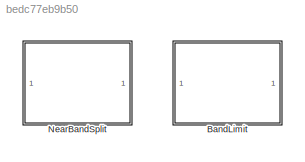
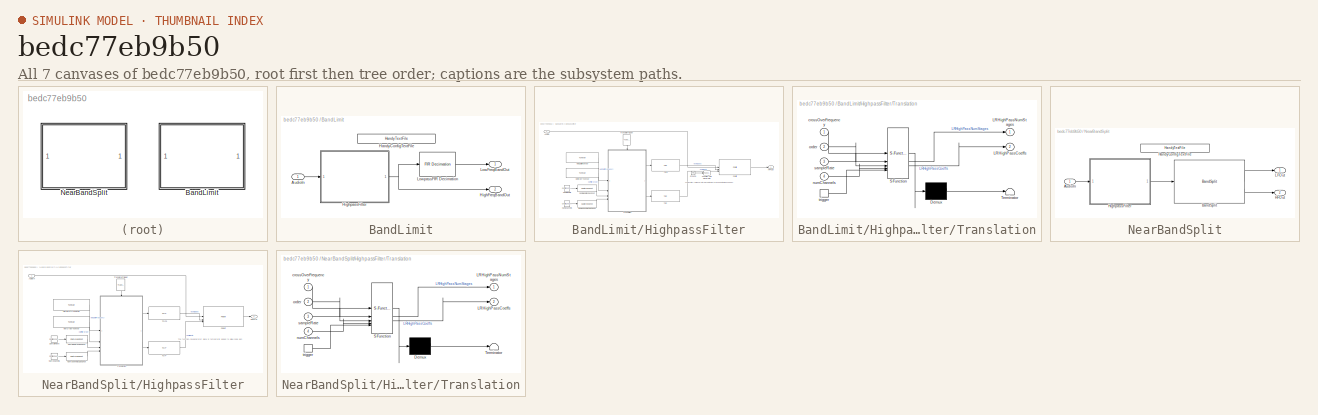
[diagram: thumbnail index - all 7 canvases of the model, root first then tree order]
MODEL slx_bedc77eb9b50
KIND library
CONFIG AbsTol = auto
CONFIG EnableMultiTasking = off
CONFIG FixedStep = auto
CONFIG MaxStep = auto
CONFIG MinStep = auto
CONFIG RelTol = 1e-3
CONFIG SampleTimeConstraint = Unconstrained
CONFIG SolverName = VariableStepAuto
CONFIG StartTime = 0.0
CONFIG StopTime = 10.0
BLOCK [SubSystem] BandLimit
  LibrarySourceBlock = BandSplitLib/BandSplit
BLOCK [Inport] BandLimit/AudioIn
BLOCK [Reference] BandLimit/HandyConfigTextFile  REF=HandyTextFile/HandyTextFile
  SourceBlock = HandyTextFile/HandyTextFile
  SourceProductName = Bose Talaria
  SourceType = Talaria Handy Text File
BLOCK [Outport] BandLimit/HighFreqBandOut
  Port = 2
  VectorParamsAs1DForOutWhenUnconnected = off
BLOCK [SubSystem] BandLimit/HighpassFilter
BLOCK [Inport] BandLimit/HighpassFilter/AudioIn
BLOCK [Reference] BandLimit/HighpassFilter/Function-Call Generator  REF=simulink/Ports &
Subsystems/Function-Call
Generator
  SourceBlock = simulink/Ports &\nSubsystems/Function-Call\nGenerator
  SourceType = Function-Call Generator
BLOCK [Ground] BandLimit/HighpassFilter/Ground
BLOCK [Outport] BandLimit/HighpassFilter/HPFOut
BLOCK [Reference] BandLimit/HighpassFilter/HpfCutOffTuneVar  REF=TuneVar/TuneVar
  SourceBlock = TuneVar/TuneVar
  SourceProductName = Bose Talaria
  SourceType = Talaria Tune Variable
BLOCK [Reference] BandLimit/HighpassFilter/HpfOrderTuneVar  REF=TuneVar/TuneVar
  SourceBlock = TuneVar/TuneVar
  SourceProductName = Bose Talaria
  SourceType = Talaria Tune Variable
BLOCK [Constant] BandLimit/HighpassFilter/NumChannels
  Value = Config.ChannelCount
BLOCK [Reference] BandLimit/HighpassFilter/NumChannelsCapConst  REF=CapturedConstLib/CapturedConst
  SourceBlock = CapturedConstLib/CapturedConst
  SourceProductName = Bose Talaria
  SourceType = Talaria Captured Constant
BLOCK [Reference] BandLimit/HighpassFilter/PoolIir  REF=PoolIir/PoolIir
  SourceBlock = PoolIir/PoolIir
  SourceType = Bose Pool IIR
BLOCK [Constant] BandLimit/HighpassFilter/SampleRate
  Value = Config.FsFast
BLOCK [Reference] BandLimit/HighpassFilter/SampleRateCapConst  REF=CapturedConstLib/CapturedConst
  SourceBlock = CapturedConstLib/CapturedConst
  SourceProductName = Bose Talaria
  SourceType = Talaria Captured Constant
BLOCK [Reference] BandLimit/HighpassFilter/TOP  REF=TOP/TOP
  SourceBlock = TOP/TOP
  SourceProductName = Bose Talaria
  SourceType = Talaria Target Overlay Parameter
BLOCK [Reference] BandLimit/HighpassFilter/TOP1  REF=TOP/TOP
  SourceBlock = TOP/TOP
  SourceProductName = Bose Talaria
  SourceType = Talaria Target Overlay Parameter
BLOCK [Reference] BandLimit/HighpassFilter/TranslateTrigger  REF=TuneVar/TranslateTrigger
  NameLocation = left
  SourceBlock = TuneVar/TranslateTrigger
  SourceProductName = Bose Talaria
  SourceType = Talaria Translate Trigger
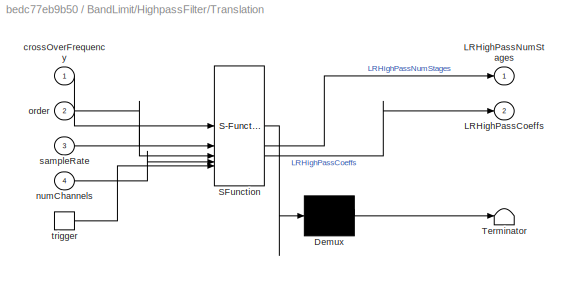
BLOCK [SubSystem] BandLimit/HighpassFilter/Translation
  ErrorFcn = Stateflow.Translate.translate
  PermitHierarchicalResolution = ExplicitOnly
  SFBlockType = MATLAB Function
  TreatAsAtomicUnit = on
BLOCK [Demux] BandLimit/HighpassFilter/Translation/ Demux 
  Outputs = 1
BLOCK [S-Function] BandLimit/HighpassFilter/Translation/ SFunction 
  EnableBusSupport = off
  FunctionName = sf_sfun
  PortCounts = [5 3]
  SFcnIsStateOwnerBlock = off
  SFunctionDeploymentMode = off
  Tag = Stateflow S-Function 2
BLOCK [Terminator] BandLimit/HighpassFilter/Translation/ Terminator 
BLOCK [Outport] BandLimit/HighpassFilter/Translation/LRHighPassCoeffs
  Port = 2
  VectorParamsAs1DForOutWhenUnconnected = off
BLOCK [Outport] BandLimit/HighpassFilter/Translation/LRHighPassNumStages
  VectorParamsAs1DForOutWhenUnconnected = off
BLOCK [Inport] BandLimit/HighpassFilter/Translation/crossOverFrequency
BLOCK [Inport] BandLimit/HighpassFilter/Translation/numChannels
  Port = 4
BLOCK [Inport] BandLimit/HighpassFilter/Translation/order
  Port = 2
BLOCK [Inport] BandLimit/HighpassFilter/Translation/sampleRate
  Port = 3
BLOCK [TriggerPort] BandLimit/HighpassFilter/Translation/trigger
  ShowOutputPort = on
  StatesWhenEnabling = held
  TriggerType = function-call
  VariantControl = Variant
BLOCK [Outport] BandLimit/LowFreqBandOut
  VectorParamsAs1DForOutWhenUnconnected = off
BLOCK [Reference] BandLimit/LowpassFIR Decimation  REF=dspmlti4/FIR
Decimation
  SourceBlock = dspmlti4/FIR\nDecimation
  SourceType = FIR Decimation
  UserDataPersistent = on
BLOCK [SubSystem] NearBandSplit
BLOCK [Inport] NearBandSplit/AudioIn
BLOCK [Reference] NearBandSplit/BandSplit  REF=BandSplitLibDeprecated/BandSplit
  SourceBlock = BandSplitLibDeprecated/BandSplit
  SourceType = NEAR BandSplit
BLOCK [Outport] NearBandSplit/HFOut
  Port = 2
  VectorParamsAs1DForOutWhenUnconnected = off
BLOCK [Reference] NearBandSplit/HandyConfigTextFile  REF=HandyTextFile/HandyTextFile
  SourceBlock = HandyTextFile/HandyTextFile
  SourceProductName = Bose Talaria
  SourceType = Talaria Handy Text File
BLOCK [SubSystem] NearBandSplit/HighpassFilter
BLOCK [Inport] NearBandSplit/HighpassFilter/AudioIn
BLOCK [Outport] NearBandSplit/HighpassFilter/HPFOut
BLOCK [Reference] NearBandSplit/HighpassFilter/HpfCutOffTuneVar  REF=TuneVar/TuneVar
  SourceBlock = TuneVar/TuneVar
  SourceProductName = Bose Talaria
  SourceType = Talaria Tune Variable
BLOCK [Reference] NearBandSplit/HighpassFilter/HpfOrderTuneVar  REF=TuneVar/TuneVar
  SourceBlock = TuneVar/TuneVar
  SourceProductName = Bose Talaria
  SourceType = Talaria Tune Variable
BLOCK [Constant] NearBandSplit/HighpassFilter/NumChannels
  Value = Config.ChannelCount
BLOCK [Reference] NearBandSplit/HighpassFilter/NumChannelsCapConst  REF=CapturedConstLib/CapturedConst
  SourceBlock = CapturedConstLib/CapturedConst
  SourceProductName = Bose Talaria
  SourceType = Talaria Captured Constant
BLOCK [Reference] NearBandSplit/HighpassFilter/PoolIir  REF=PoolIir/PoolIir
  SourceBlock = PoolIir/PoolIir
  SourceType = Bose Pool IIR
BLOCK [Constant] NearBandSplit/HighpassFilter/SampleRate
  Value = Config.FsFast
BLOCK [Reference] NearBandSplit/HighpassFilter/SampleRateCapConst  REF=CapturedConstLib/CapturedConst
  SourceBlock = CapturedConstLib/CapturedConst
  SourceProductName = Bose Talaria
  SourceType = Talaria Captured Constant
BLOCK [Reference] NearBandSplit/HighpassFilter/TOP  REF=TOP/TOP
  SourceBlock = TOP/TOP
  SourceProductName = Bose Talaria
  SourceType = Talaria Target Overlay Parameter
BLOCK [Reference] NearBandSplit/HighpassFilter/TOP1  REF=TOP/TOP
  SourceBlock = TOP/TOP
  SourceProductName = Bose Talaria
  SourceType = Talaria Target Overlay Parameter
BLOCK [Reference] NearBandSplit/HighpassFilter/TranslateTrigger  REF=TuneVar/TranslateTrigger
  NameLocation = left
  SourceBlock = TuneVar/TranslateTrigger
  SourceProductName = Bose Talaria
  SourceType = Talaria Translate Trigger
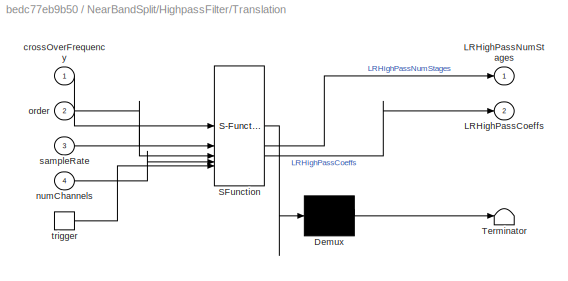
BLOCK [SubSystem] NearBandSplit/HighpassFilter/Translation
  ErrorFcn = Stateflow.Translate.translate
  PermitHierarchicalResolution = ExplicitOnly
  SFBlockType = MATLAB Function
  TreatAsAtomicUnit = on
BLOCK [Demux] NearBandSplit/HighpassFilter/Translation/ Demux 
  Outputs = 1
BLOCK [S-Function] NearBandSplit/HighpassFilter/Translation/ SFunction 
  EnableBusSupport = off
  FunctionName = sf_sfun
  PortCounts = [5 3]
  SFcnIsStateOwnerBlock = off
  SFunctionDeploymentMode = off
  Tag = Stateflow S-Function 3
BLOCK [Terminator] NearBandSplit/HighpassFilter/Translation/ Terminator 
BLOCK [Outport] NearBandSplit/HighpassFilter/Translation/LRHighPassCoeffs
  Port = 2
  VectorParamsAs1DForOutWhenUnconnected = off
BLOCK [Outport] NearBandSplit/HighpassFilter/Translation/LRHighPassNumStages
  VectorParamsAs1DForOutWhenUnconnected = off
BLOCK [Inport] NearBandSplit/HighpassFilter/Translation/crossOverFrequency
BLOCK [Inport] NearBandSplit/HighpassFilter/Translation/numChannels
  Port = 4
BLOCK [Inport] NearBandSplit/HighpassFilter/Translation/order
  Port = 2
BLOCK [Inport] NearBandSplit/HighpassFilter/Translation/sampleRate
  Port = 3
BLOCK [TriggerPort] NearBandSplit/HighpassFilter/Translation/trigger
  ShowOutputPort = on
  StatesWhenEnabling = held
  TriggerType = function-call
  VariantControl = Variant
BLOCK [Outport] NearBandSplit/LFOut
  VectorParamsAs1DForOutWhenUnconnected = off
ANNOTATION BandLimit/HighpassFilter: The function-call generator block is temporarily added to allow code gen
ANNOTATION NearBandSplit/HighpassFilter: The function-call generator block is temporarily added to allow code gen
LINE BandLimit/AudioIn:1 -> BandLimit/HighpassFilter:1
LINE BandLimit/HighpassFilter/AudioIn:1 -> BandLimit/HighpassFilter/PoolIir:1
LINE BandLimit/HighpassFilter/Ground:1 -> BandLimit/HighpassFilter/Function-Call Generator:1
LINE BandLimit/HighpassFilter/HpfCutOffTuneVar:1 -> BandLimit/HighpassFilter/Translation:1
LINE BandLimit/HighpassFilter/HpfOrderTuneVar:1 -> BandLimit/HighpassFilter/Translation:2
LINE BandLimit/HighpassFilter/NumChannels:1 -> BandLimit/HighpassFilter/NumChannelsCapConst:1
LINE BandLimit/HighpassFilter/NumChannelsCapConst:1 -> BandLimit/HighpassFilter/Translation:4
LINE BandLimit/HighpassFilter/PoolIir:1 -> BandLimit/HighpassFilter/HPFOut:1
LINE BandLimit/HighpassFilter/SampleRate:1 -> BandLimit/HighpassFilter/SampleRateCapConst:1
LINE BandLimit/HighpassFilter/SampleRateCapConst:1 -> BandLimit/HighpassFilter/Translation:3
LINE BandLimit/HighpassFilter/TOP1:1 -> BandLimit/HighpassFilter/PoolIir:2
LINE BandLimit/HighpassFilter/TOP:1 -> BandLimit/HighpassFilter/PoolIir:3
LINE BandLimit/HighpassFilter/TranslateTrigger:1 -> BandLimit/HighpassFilter/Translation:trigger
LINE BandLimit/HighpassFilter/Translation:1 -> BandLimit/HighpassFilter/TOP1:1
LINE BandLimit/HighpassFilter/Translation:2 -> BandLimit/HighpassFilter/TOP:1
NET BandLimit/HighpassFilter:1 -> BandLimit/HighFreqBandOut:1, BandLimit/LowpassFIR Decimation:1
LINE BandLimit/LowpassFIR Decimation:1 -> BandLimit/LowFreqBandOut:1
LINE NearBandSplit/AudioIn:1 -> NearBandSplit/HighpassFilter:1
LINE NearBandSplit/BandSplit:1 -> NearBandSplit/LFOut:1
LINE NearBandSplit/BandSplit:2 -> NearBandSplit/HFOut:1
LINE NearBandSplit/HighpassFilter/AudioIn:1 -> NearBandSplit/HighpassFilter/PoolIir:1
LINE NearBandSplit/HighpassFilter/HpfCutOffTuneVar:1 -> NearBandSplit/HighpassFilter/Translation:1
LINE NearBandSplit/HighpassFilter/HpfOrderTuneVar:1 -> NearBandSplit/HighpassFilter/Translation:2
LINE NearBandSplit/HighpassFilter/NumChannels:1 -> NearBandSplit/HighpassFilter/NumChannelsCapConst:1
LINE NearBandSplit/HighpassFilter/NumChannelsCapConst:1 -> NearBandSplit/HighpassFilter/Translation:4
LINE NearBandSplit/HighpassFilter/PoolIir:1 -> NearBandSplit/HighpassFilter/HPFOut:1
LINE NearBandSplit/HighpassFilter/SampleRate:1 -> NearBandSplit/HighpassFilter/SampleRateCapConst:1
LINE NearBandSplit/HighpassFilter/SampleRateCapConst:1 -> NearBandSplit/HighpassFilter/Translation:3
LINE NearBandSplit/HighpassFilter/TOP1:1 -> NearBandSplit/HighpassFilter/PoolIir:2
LINE NearBandSplit/HighpassFilter/TOP:1 -> NearBandSplit/HighpassFilter/PoolIir:3
LINE NearBandSplit/HighpassFilter/TranslateTrigger:1 -> NearBandSplit/HighpassFilter/Translation:trigger
LINE NearBandSplit/HighpassFilter/Translation:1 -> NearBandSplit/HighpassFilter/TOP1:1
LINE NearBandSplit/HighpassFilter/Translation:2 -> NearBandSplit/HighpassFilter/TOP:1
LINE NearBandSplit/HighpassFilter:1 -> NearBandSplit/BandSplit:1
note: NET lines group one-source signal fan-out (src -> all destinations, sorted); 1:1 wires keep LINE
CHART BandLimit/HighpassFilter/Translation states=1 transitions=1
  STATE_LABEL 'eML_blk_kernel()'
  STATE_LABEL 'SCRIPT:\nfunction [LRHighPassNumStages, LRHighPassCoeffs]  = fcn(crossOverFrequency, order, sampleRate, numChannels)\n%#codegen\nMAX_HPF_ORDER = 10;\nMAX_NUM_CHANNELS = 4;\nIIR_HIGHPASS = 1;\n\n% Linkwitz-Riley Filters can be construed as the cascade of\n% two Butterworth Filters of half the order at the same frequency.\nfilterOrder = order.Value;\nbutterOrder = floor((filterOrder+1)/2);\nnormFrequency = cro...<+3608ch>'
CHART NearBandSplit/HighpassFilter/Translation states=1 transitions=1
  STATE_LABEL 'eML_blk_kernel()'
  STATE_LABEL 'SCRIPT:\nfunction [LRHighPassNumStages, LRHighPassCoeffs]  = fcn(crossOverFrequency, order, sampleRate, numChannels)\n%#codegen\nMAX_HPF_ORDER = 10;\nMAX_NUM_CHANNELS = 4;\nIIR_HIGHPASS = 1;\n\n% Linkwitz-Riley Filters can be construed as the cascade of\n% two Butterworth Filters of half the order at the same frequency.\nfilterOrder = order.Value;\nbutterOrder = floor((filterOrder+1)/2);\nnormFrequency = cro...<+3608ch>'
CHART  states=0 transitions=0
CHART  states=0 transitions=0
